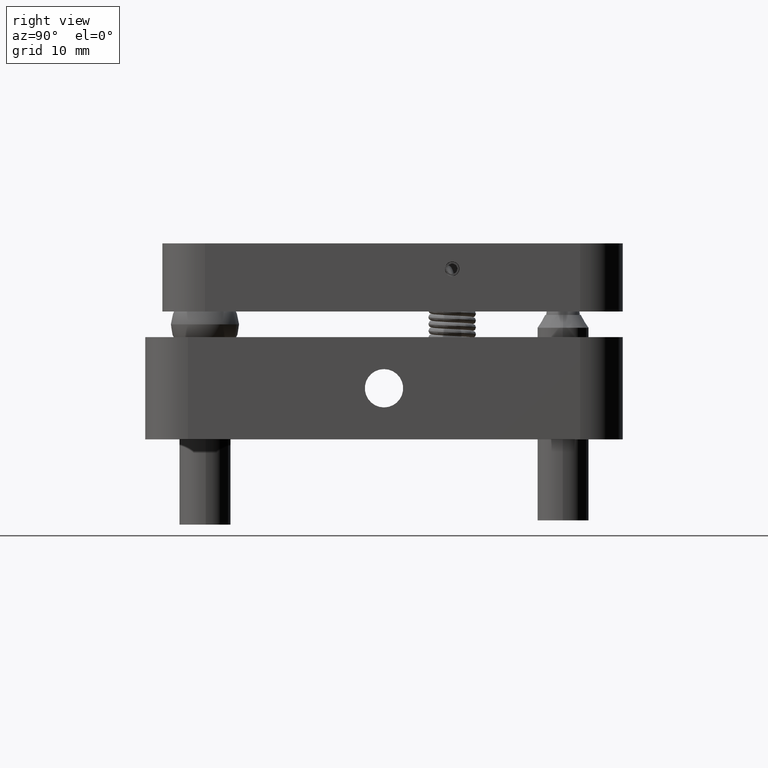
[diagram: clean part render]
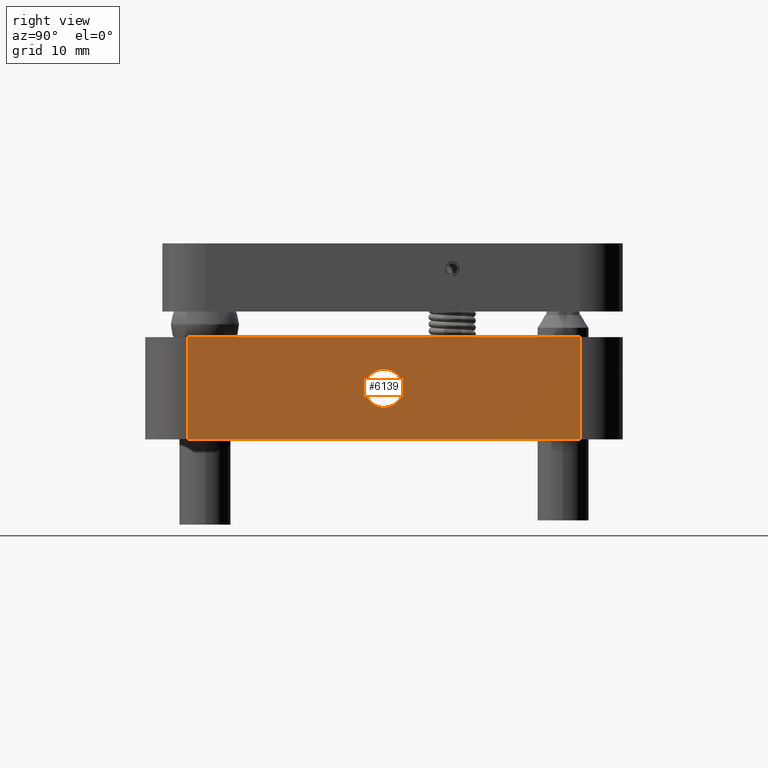
[diagram: same view with one face highlighted and labeled with its STEP entity id]
A machine part, right view. The second image highlights one B-rep face of the part: STEP entity #6139.
In plain terms, the highlighted planar face has unit normal (1, 0, -0).
Its self-contained STEP definition (entity closure, byte-faithful):
#16 = ORIENTED_EDGE ( 'NONE', *, *, #10283, .F. ) ;
#483 = CARTESIAN_POINT ( 'NONE',  ( 28.00000000000000355, 22.99999999999996803, -15.00000000000000355 ) ) ;
#1038 = VERTEX_POINT ( 'NONE', #7580 ) ;
#1442 = CARTESIAN_POINT ( 'NONE',  ( 28.00000000000000711, 0.000000000000000000, -9.000000000000003553 ) ) ;
#1918 = VERTEX_POINT ( 'NONE', #4360 ) ;
#2222 = EDGE_LOOP ( 'NONE', ( #4984, #10394 ) ) ;
#2326 = DIRECTION ( 'NONE',  ( 1.000000000000000000, 1.508455196501573401E-16, -0.000000000000000000 ) ) ;
#3765 = LINE ( 'NONE', #483, #5293 ) ;
#4117 = DIRECTION ( 'NONE',  ( 0.000000000000000000, 0.000000000000000000, 1.000000000000000000 ) ) ;
#4360 = CARTESIAN_POINT ( 'NONE',  ( 28.00000000000001066, -22.99999999999996092, -15.00000000000000355 ) ) ;
#4369 = DIRECTION ( 'NONE',  ( -1.508455196501573648E-16, 1.000000000000000000, -0.000000000000000000 ) ) ;
#4939 = ORIENTED_EDGE ( 'NONE', *, *, #5808, .F. ) ;
#4984 = ORIENTED_EDGE ( 'NONE', *, *, #5235, .F. ) ;
#5235 = EDGE_CURVE ( 'NONE', #11456, #7292, #6027, .T. ) ;
#5293 = VECTOR ( 'NONE', #6769, 1000.000000000000000 ) ;
#5539 = DIRECTION ( 'NONE',  ( -1.508455196501573401E-16, 1.000000000000000000, 0.000000000000000000 ) ) ;
#5572 = VECTOR ( 'NONE', #4369, 1000.000000000000000 ) ;
#5607 = PLANE ( 'NONE',  #6012 ) ;
#5808 = EDGE_CURVE ( 'NONE', #1038, #8343, #9204, .T. ) ;
#5943 = CIRCLE ( 'NONE', #6836, 2.249999999999999112 ) ;
#6012 = AXIS2_PLACEMENT_3D ( 'NONE', #11710, #2326, #5539 ) ;
#6027 = CIRCLE ( 'NONE', #7370, 2.249999999999999112 ) ;
#6139 = ADVANCED_FACE ( 'NONE', ( #6515, #9822 ), #5607, .T. ) ;
#6357 = CARTESIAN_POINT ( 'NONE',  ( 28.00000000000001066, -22.99999999999996092, -15.00000000000000355 ) ) ;
#6515 = FACE_BOUND ( 'NONE', #2222, .T. ) ;
#6538 = CARTESIAN_POINT ( 'NONE',  ( 28.00000000000000355, 22.99999999999996447, -15.00000000000000355 ) ) ;
#6769 = DIRECTION ( 'NONE',  ( 0.000000000000000000, 0.000000000000000000, 1.000000000000000000 ) ) ;
#6793 = CARTESIAN_POINT ( 'NONE',  ( 28.00000000000000711, 0.000000000000000000, -9.000000000000003553 ) ) ;
#6794 = DIRECTION ( 'NONE',  ( -1.508455196501573648E-16, 1.000000000000000000, -0.000000000000000000 ) ) ;
#6836 = AXIS2_PLACEMENT_3D ( 'NONE', #6793, #13456, #10185 ) ;
#6974 = CARTESIAN_POINT ( 'NONE',  ( 28.00000000000000711, 2.755455298081543792E-16, -6.750000000000004441 ) ) ;
#7292 = VERTEX_POINT ( 'NONE', #6974 ) ;
#7370 = AXIS2_PLACEMENT_3D ( 'NONE', #1442, #9792, #11872 ) ;
#7580 = CARTESIAN_POINT ( 'NONE',  ( 28.00000000000001066, -22.99999999999996092, -3.000000000000002665 ) ) ;
#7657 = LINE ( 'NONE', #6538, #5572 ) ;
#7999 = VECTOR ( 'NONE', #6794, 1000.000000000000000 ) ;
#8047 = CARTESIAN_POINT ( 'NONE',  ( 28.00000000000000355, 22.99999999999996447, -3.000000000000002665 ) ) ;
#8329 = EDGE_LOOP ( 'NONE', ( #4939, #16, #10290, #10486 ) ) ;
#8343 = VERTEX_POINT ( 'NONE', #12417 ) ;
#8727 = CARTESIAN_POINT ( 'NONE',  ( 28.00000000000000711, 0.000000000000000000, -11.25000000000000178 ) ) ;
#8835 = EDGE_CURVE ( 'NONE', #7292, #11456, #5943, .T. ) ;
#9204 = LINE ( 'NONE', #8047, #7999 ) ;
#9686 = EDGE_CURVE ( 'NONE', #13083, #8343, #3765, .T. ) ;
#9792 = DIRECTION ( 'NONE',  ( 1.000000000000000000, 1.508455196501573401E-16, -0.000000000000000000 ) ) ;
#9822 = FACE_OUTER_BOUND ( 'NONE', #8329, .T. ) ;
#10185 = DIRECTION ( 'NONE',  ( 0.000000000000000000, 1.000000000000000000, 0.000000000000000000 ) ) ;
#10283 = EDGE_CURVE ( 'NONE', #1918, #1038, #13636, .T. ) ;
#10290 = ORIENTED_EDGE ( 'NONE', *, *, #13026, .T. ) ;
#10394 = ORIENTED_EDGE ( 'NONE', *, *, #8835, .F. ) ;
#10486 = ORIENTED_EDGE ( 'NONE', *, *, #9686, .T. ) ;
#11027 = CARTESIAN_POINT ( 'NONE',  ( 28.00000000000000355, 22.99999999999996803, -15.00000000000000355 ) ) ;
#11456 = VERTEX_POINT ( 'NONE', #8727 ) ;
#11710 = CARTESIAN_POINT ( 'NONE',  ( 28.00000000000000355, 22.99999999999996447, -15.00000000000000355 ) ) ;
#11872 = DIRECTION ( 'NONE',  ( 0.000000000000000000, 1.000000000000000000, 0.000000000000000000 ) ) ;
#12417 = CARTESIAN_POINT ( 'NONE',  ( 28.00000000000000355, 22.99999999999996803, -3.000000000000002665 ) ) ;
#12836 = VECTOR ( 'NONE', #4117, 1000.000000000000000 ) ;
#13026 = EDGE_CURVE ( 'NONE', #1918, #13083, #7657, .T. ) ;
#13083 = VERTEX_POINT ( 'NONE', #11027 ) ;
#13456 = DIRECTION ( 'NONE',  ( 1.000000000000000000, 1.508455196501573401E-16, -0.000000000000000000 ) ) ;
#13636 = LINE ( 'NONE', #6357, #12836 ) ;